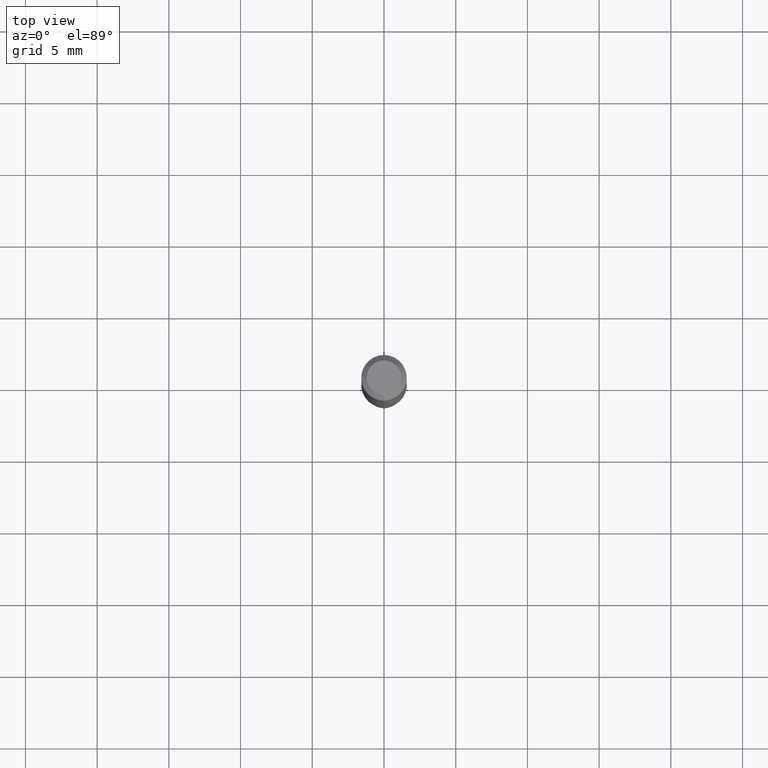
[diagram: clean part render]
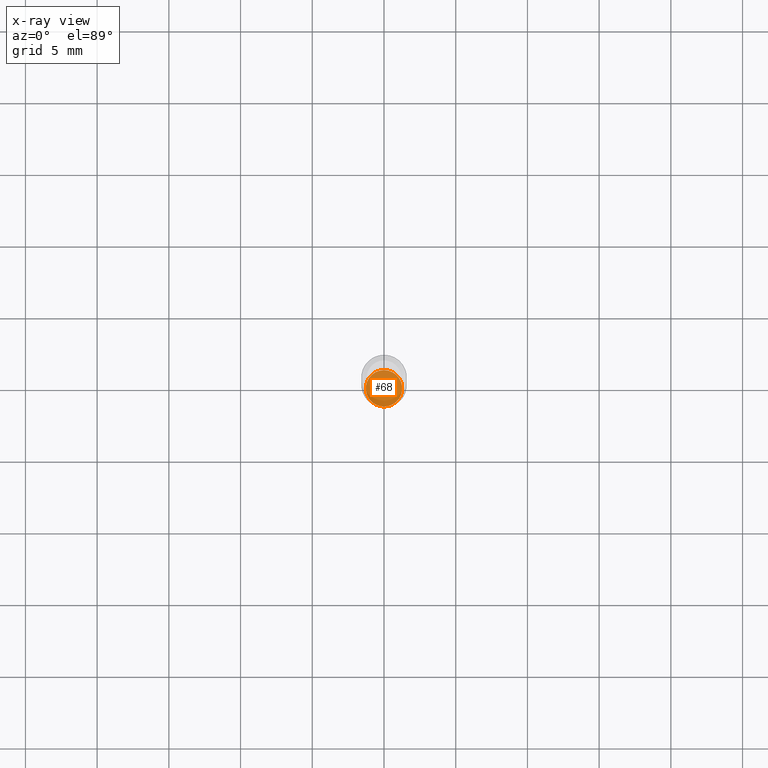
[diagram: x-ray — body ghosted, one internal face saturated and labeled with its STEP entity id]
A machine part, top view, then the same camera in x-ray: the body is ghosted and one INTERNAL B-rep face — a face not visible from any outside direction — is saturated and labeled: STEP entity #68.
In plain terms, the highlighted planar face has unit normal (-0, 0, 1).
Its self-contained STEP definition (entity closure, byte-faithful):
#11 = DIRECTION ( 'NONE',  ( -2.445378392071587923E-29, 3.491610816999798488E-15, 1.000000000000000000 ) ) ;
#45 = CIRCLE ( 'NONE', #108, 0.05000000000000000278 ) ;
#57 = PLANE ( 'NONE',  #60 ) ;
#60 = AXIS2_PLACEMENT_3D ( 'NONE', #227, #11, #190 ) ;
#68 = ADVANCED_FACE ( 'NONE', ( #194 ), #57, .F. ) ;
#108 = AXIS2_PLACEMENT_3D ( 'NONE', #379, #550, #328 ) ;
#128 = DIRECTION ( 'NONE',  ( -2.445378392071588483E-29, 3.491610816999798093E-15, 1.000000000000000000 ) ) ;
#139 = CIRCLE ( 'NONE', #302, 0.05000000000000000278 ) ;
#149 = CARTESIAN_POINT ( 'NONE',  ( -3.491481338842715752E-16, -0.05000000000000592165, -1.699999999999999734 ) ) ;
#190 = DIRECTION ( 'NONE',  ( -6.982962677686265922E-15, -1.000000000000000000, 3.491610816999798488E-15 ) ) ;
#194 = FACE_OUTER_BOUND ( 'NONE', #312, .T. ) ;
#207 = CARTESIAN_POINT ( 'NONE',  ( 3.552713678800914786E-16, 0.04999999999999404227, -1.700000000000000178 ) ) ;
#227 = CARTESIAN_POINT ( 'NONE',  ( 3.491481338843548493E-16, 0.04999999999999407002, -1.700000000000000178 ) ) ;
#243 = CARTESIAN_POINT ( 'NONE',  ( 4.157143266521700029E-29, -5.935738388899656562E-15, -1.699999999999999956 ) ) ;
#284 = DIRECTION ( 'NONE',  ( -6.982962677686265133E-15, -1.000000000000000000, 5.463695987328526437E-15 ) ) ;
#302 = AXIS2_PLACEMENT_3D ( 'NONE', #243, #128, #284 ) ;
#312 = EDGE_LOOP ( 'NONE', ( #516, #536 ) ) ;
#328 = DIRECTION ( 'NONE',  ( -6.982962677686265133E-15, -1.000000000000000000, 5.463695987328526437E-15 ) ) ;
#379 = CARTESIAN_POINT ( 'NONE',  ( 4.157143266521700029E-29, -5.935738388899656562E-15, -1.699999999999999956 ) ) ;
#456 = EDGE_CURVE ( 'NONE', #460, #500, #139, .T. ) ;
#460 = VERTEX_POINT ( 'NONE', #149 ) ;
#500 = VERTEX_POINT ( 'NONE', #207 ) ;
#504 = EDGE_CURVE ( 'NONE', #500, #460, #45, .T. ) ;
#516 = ORIENTED_EDGE ( 'NONE', *, *, #456, .F. ) ;
#536 = ORIENTED_EDGE ( 'NONE', *, *, #504, .F. ) ;
#550 = DIRECTION ( 'NONE',  ( -2.445378392071588483E-29, 3.491610816999798093E-15, 1.000000000000000000 ) ) ;